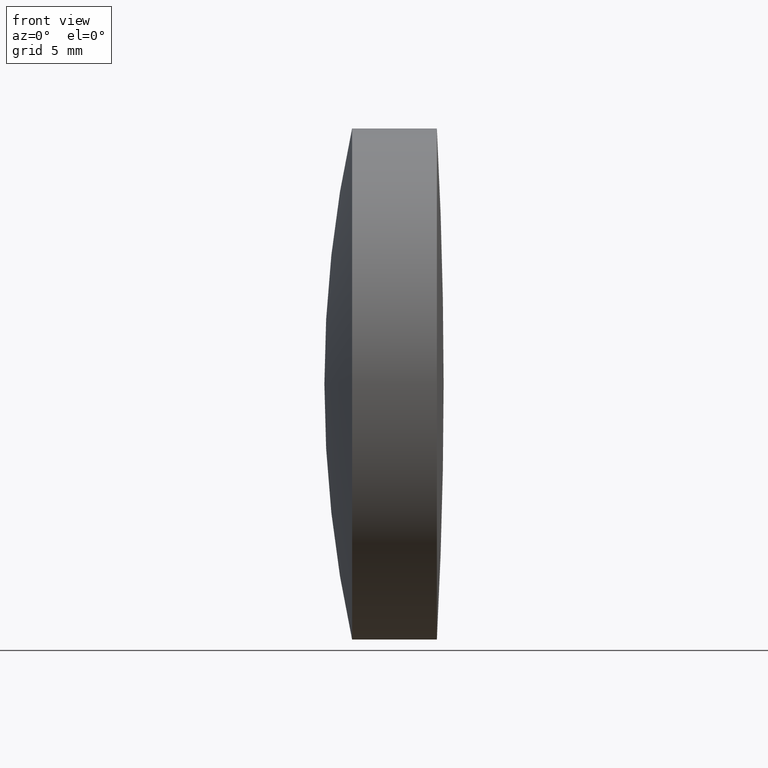
[diagram: clean part render]
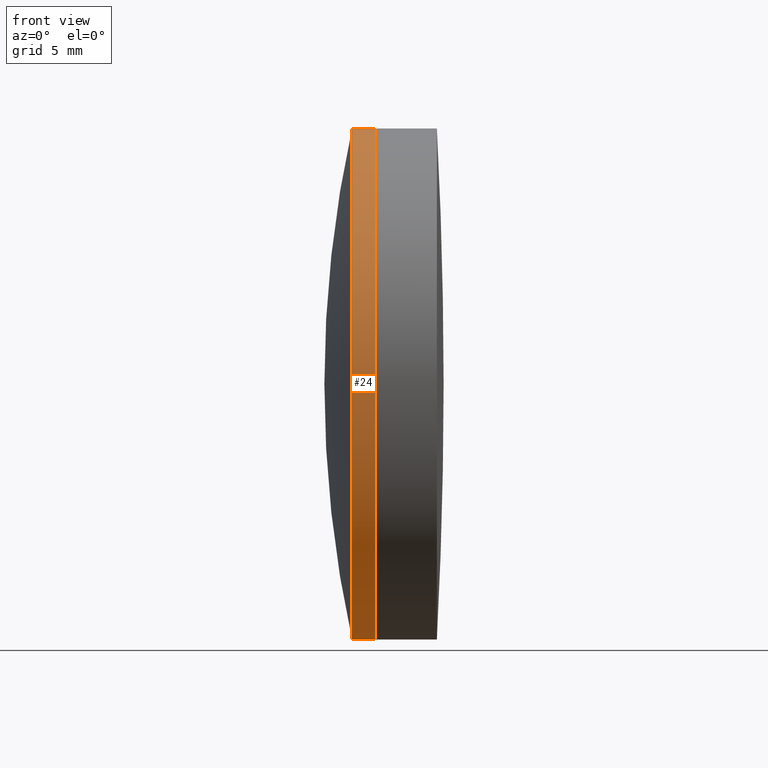
[diagram: same view with one face highlighted and labeled with its STEP entity id]
A machine part, front view. The second image highlights one B-rep face of the part: STEP entity #24.
In plain terms, the highlighted cylindrical surface (partial cylindrical patch) has radius 15 mm, axis along (-1, -0, -0).
Its self-contained STEP definition (entity closure, byte-faithful):
#17 = CARTESIAN_POINT ( 'NONE',  ( 234.5265290828657800, 0.0000000000000000000, 14.99999999999989300 ) ) ;
#24 = ADVANCED_FACE ( 'NONE', ( #37 ), #240, .T. ) ;
#31 = LINE ( 'NONE', #164, #345 ) ;
#37 = FACE_OUTER_BOUND ( 'NONE', #280, .T. ) ;
#45 = AXIS2_PLACEMENT_3D ( 'NONE', #221, #266, #169 ) ;
#46 = VERTEX_POINT ( 'NONE', #17 ) ;
#62 = CARTESIAN_POINT ( 'NONE',  ( 234.5265290828657800, 1.836970198721017000E-015, -15.00000000000011400 ) ) ;
#69 = ORIENTED_EDGE ( 'NONE', *, *, #224, .T. ) ;
#74 = EDGE_CURVE ( 'NONE', #328, #46, #336, .T. ) ;
#88 = DIRECTION ( 'NONE',  ( 0.0000000000000000000, 0.0000000000000000000, 1.000000000000000000 ) ) ;
#93 = CARTESIAN_POINT ( 'NONE',  ( 235.8914090782225800, 0.0000000000000000000, 0.0000000000000000000 ) ) ;
#117 = DIRECTION ( 'NONE',  ( -1.000000000000000000, -0.0000000000000000000, -0.0000000000000000000 ) ) ;
#120 = DIRECTION ( 'NONE',  ( -1.000000000000000000, -0.0000000000000000000, -0.0000000000000000000 ) ) ;
#123 = EDGE_CURVE ( 'NONE', #289, #328, #207, .T. ) ;
#125 = AXIS2_PLACEMENT_3D ( 'NONE', #93, #131, #320 ) ;
#131 = DIRECTION ( 'NONE',  ( -1.000000000000000000, -0.0000000000000000000, -0.0000000000000000000 ) ) ;
#164 = CARTESIAN_POINT ( 'NONE',  ( 124.5233095260452400, 0.0000000000000000000, 14.99999999999990200 ) ) ;
#169 = DIRECTION ( 'NONE',  ( 0.0000000000000000000, 0.0000000000000000000, 1.000000000000000000 ) ) ;
#182 = ORIENTED_EDGE ( 'NONE', *, *, #347, .T. ) ;
#199 = AXIS2_PLACEMENT_3D ( 'NONE', #297, #117, #88 ) ;
#200 = ORIENTED_EDGE ( 'NONE', *, *, #123, .F. ) ;
#207 = LINE ( 'NONE', #246, #244 ) ;
#217 = DIRECTION ( 'NONE',  ( -1.000000000000000000, -0.0000000000000000000, -0.0000000000000000000 ) ) ;
#221 = CARTESIAN_POINT ( 'NONE',  ( 124.5233095260452400, 0.0000000000000000000, 0.0000000000000000000 ) ) ;
#224 = EDGE_CURVE ( 'NONE', #263, #46, #31, .T. ) ;
#239 = CIRCLE ( 'NONE', #125, 14.99999999999989700 ) ;
#240 = CYLINDRICAL_SURFACE ( 'NONE', #45, 14.99999999999990200 ) ;
#244 = VECTOR ( 'NONE', #217, 1000.000000000000000 ) ;
#246 = CARTESIAN_POINT ( 'NONE',  ( 124.5233095260452400, 1.836970198721017800E-015, -14.99999999999990200 ) ) ;
#263 = VERTEX_POINT ( 'NONE', #346 ) ;
#266 = DIRECTION ( 'NONE',  ( -1.000000000000000000, -0.0000000000000000000, -0.0000000000000000000 ) ) ;
#272 = CARTESIAN_POINT ( 'NONE',  ( 235.8914090782225800, 1.836970198721017400E-015, -14.99999999999989700 ) ) ;
#280 = EDGE_LOOP ( 'NONE', ( #200, #182, #69, #306 ) ) ;
#289 = VERTEX_POINT ( 'NONE', #272 ) ;
#297 = CARTESIAN_POINT ( 'NONE',  ( 234.5265290828657800, 0.0000000000000000000, 0.0000000000000000000 ) ) ;
#306 = ORIENTED_EDGE ( 'NONE', *, *, #74, .F. ) ;
#320 = DIRECTION ( 'NONE',  ( 0.0000000000000000000, 0.0000000000000000000, 1.000000000000000000 ) ) ;
#328 = VERTEX_POINT ( 'NONE', #62 ) ;
#336 = CIRCLE ( 'NONE', #199, 14.99999999999990800 ) ;
#345 = VECTOR ( 'NONE', #120, 1000.000000000000000 ) ;
#346 = CARTESIAN_POINT ( 'NONE',  ( 235.8914090782225800, 0.0000000000000000000, 14.99999999999989700 ) ) ;
#347 = EDGE_CURVE ( 'NONE', #289, #263, #239, .T. ) ;